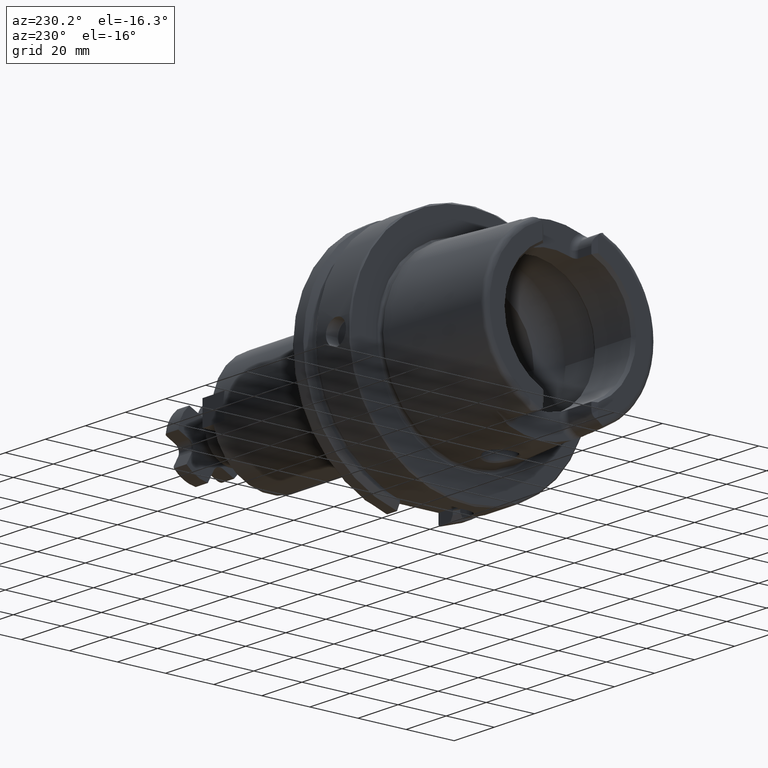
[diagram: clean part render]
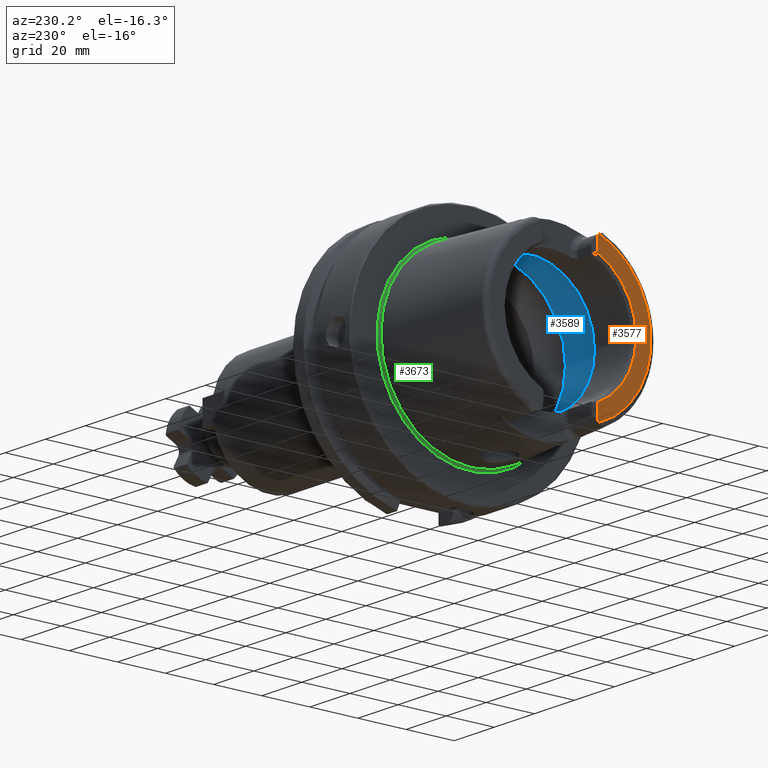
[diagram: same view with three faces highlighted in distinct colors, each labeled with its STEP entity id]
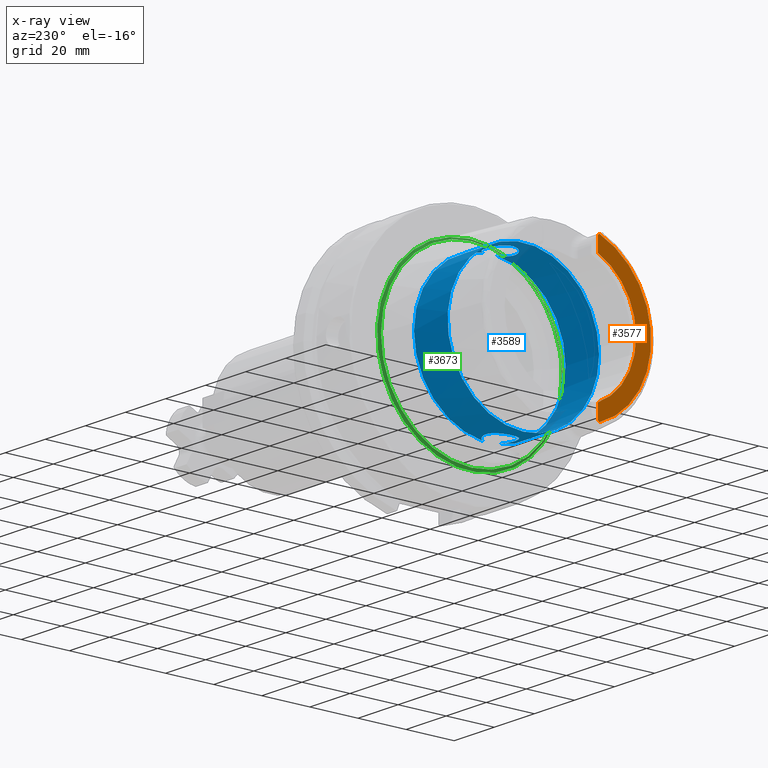
[diagram: x-ray of the same camera — body ghosted, the three highlighted faces saturated]
A machine part, auxiliary view with three faces highlighted in distinct colors.
The next image is the same camera in x-ray (body ghosted, the three faces saturated) — at least one of them is partly hidden behind the body in this view.
Their STEP definitions:

[orange] entity #3577 — the highlighted planar face has unit normal (-1, 0, 0).
#710=PLANE('',#4003);
#857=FACE_OUTER_BOUND('',#1048,.T.);
#1048=EDGE_LOOP('',(#2748,#2749,#2750,#2751,#2752,#2753));
#1254=LINE('',#5724,#1444);
#1256=LINE('',#5743,#1446);
#1444=VECTOR('',#4582,10.);
#1446=VECTOR('',#4604,10.);
#1625=CIRCLE('',#3999,27.3660254037844);
#1628=CIRCLE('',#4004,4.88);
#1629=CIRCLE('',#4005,33.6001839277785);
#1630=CIRCLE('',#4006,4.88);
#1878=VERTEX_POINT('',#5721);
#1879=VERTEX_POINT('',#5723);
#1881=VERTEX_POINT('',#5729);
#1884=VERTEX_POINT('',#5737);
#1885=VERTEX_POINT('',#5739);
#1886=VERTEX_POINT('',#5741);
#2208=EDGE_CURVE('',#1878,#1879,#1254,.T.);
#2211=EDGE_CURVE('',#1879,#1881,#1625,.T.);
#2215=EDGE_CURVE('',#1878,#1884,#1628,.T.);
#2216=EDGE_CURVE('',#1885,#1884,#1629,.T.);
#2217=EDGE_CURVE('',#1885,#1886,#1630,.T.);
#2218=EDGE_CURVE('',#1881,#1886,#1256,.T.);
#2748=ORIENTED_EDGE('',*,*,#2208,.F.);
#2749=ORIENTED_EDGE('',*,*,#2215,.T.);
#2750=ORIENTED_EDGE('',*,*,#2216,.F.);
#2751=ORIENTED_EDGE('',*,*,#2217,.T.);
#2752=ORIENTED_EDGE('',*,*,#2218,.F.);
#2753=ORIENTED_EDGE('',*,*,#2211,.F.);
#3577=ADVANCED_FACE('',(#857),#710,.T.);
#3999=AXIS2_PLACEMENT_3D('',#5730,#4588,#4589);
#4003=AXIS2_PLACEMENT_3D('',#5736,#4596,#4597);
#4004=AXIS2_PLACEMENT_3D('',#5738,#4598,#4599);
#4005=AXIS2_PLACEMENT_3D('',#5740,#4600,#4601);
#4006=AXIS2_PLACEMENT_3D('',#5742,#4602,#4603);
#4582=DIRECTION('',(0.,0.,1.));
#4588=DIRECTION('center_axis',(-1.,0.,0.));
#4589=DIRECTION('ref_axis',(0.,-1.,0.));
#4596=DIRECTION('center_axis',(-1.,0.,0.));
#4597=DIRECTION('ref_axis',(0.,0.,1.));
#4598=DIRECTION('center_axis',(-1.,0.,0.));
#4599=DIRECTION('ref_axis',(0.,-1.,0.));
#4600=DIRECTION('center_axis',(1.,0.,0.));
#4601=DIRECTION('ref_axis',(0.,0.,-1.));
#4602=DIRECTION('center_axis',(-1.,0.,0.));
#4603=DIRECTION('ref_axis',(0.,0.477884921181369,-0.878422450821629));
#4604=DIRECTION('',(0.,0.,1.));
#5721=CARTESIAN_POINT('',(-50.,-11.51,-30.8899431813596));
#5723=CARTESIAN_POINT('',(-50.,-11.51,-24.8277918148307));
#5724=CARTESIAN_POINT('',(-50.,-11.51,-13.685));
#5729=CARTESIAN_POINT('',(-50.,-11.51,24.8277918148307));
#5730=CARTESIAN_POINT('Origin',(-50.,0.,0.));
#5736=CARTESIAN_POINT('Origin',(-50.,33.6001839277785,0.));
#5737=CARTESIAN_POINT('',(-50.,-12.0743049948301,-31.355757348091));
#5738=CARTESIAN_POINT('Origin',(-50.,-14.89,-27.37));
#5739=CARTESIAN_POINT('',(-50.,-12.0743049948301,31.355757348091));
#5740=CARTESIAN_POINT('Origin',(-50.,0.,0.));
#5741=CARTESIAN_POINT('',(-50.,-11.51,30.8899431813596));
#5742=CARTESIAN_POINT('Origin',(-50.,-14.89,27.37));
#5743=CARTESIAN_POINT('',(-50.,-11.51,9.));

[blue] entity #3589 — the highlighted cylindrical surface (bore or boss wall) has radius 31.5 mm, axis along (-1, 0, 0).
#591=B_SPLINE_CURVE_WITH_KNOTS('',3,(#6147,#6148,#6149,#6150,#6151,#6152,
#6153,#6154,#6155,#6156,#6157,#6158,#6159,#6160,#6161,#6162,#6163,#6164,
#6165,#6166,#6167,#6168,#6169,#6170,#6171,#6172,#6173,#6174,#6175,#6176,
#6177),.UNSPECIFIED.,.F.,.F.,(4,2,2,2,2,2,2,2,2,2,2,3,2,2,4),(-2.42966289251045,
-2.26609494287567,-2.03948128472637,-1.81286762657707,-1.58625396842777,
-1.35964031027847,-1.1330370617835,-0.906433813288535,-0.679830564793567,
-0.453227316298599,-0.226613658149299,0.,0.2266136581493,0.453227316298599,
0.616795265988555),.UNSPECIFIED.);
#596=B_SPLINE_CURVE_WITH_KNOTS('',3,(#6339,#6340,#6341,#6342,#6343,#6344,
#6345,#6346,#6347,#6348,#6349,#6350,#6351,#6352,#6353,#6354,#6355,#6356,
#6357,#6358,#6359,#6360,#6361,#6362,#6363,#6364,#6365,#6366,#6367,#6368,
#6369),.UNSPECIFIED.,.F.,.F.,(4,2,2,3,2,2,2,2,2,2,2,2,2,2,4),(-0.616795265933374,
-0.453227316298598,-0.226613658149299,0.,0.2266136581493,0.453227316298599,
0.679830564793567,0.906433813288535,1.1330370617835,1.35964031027847,1.58625396842777,
1.81286762657707,2.03948128472637,2.26609494287567,2.42966289256562),
 .UNSPECIFIED.);
#784=CYLINDRICAL_SURFACE('',#4028,31.5);
#869=FACE_OUTER_BOUND('',#1062,.T.);
#1062=EDGE_LOOP('',(#2828,#2829,#2830,#2831,#2832,#2833,#2834,#2835,#2836));
#1271=LINE('',#6385,#1461);
#1461=VECTOR('',#4665,31.5);
#1640=CIRCLE('',#4029,31.5);
#1641=CIRCLE('',#4030,31.5);
#1642=CIRCLE('',#4031,31.5);
#1643=CIRCLE('',#4032,31.5);
#1644=CIRCLE('',#4033,31.5);
#1918=VERTEX_POINT('',#6135);
#1919=VERTEX_POINT('',#6146);
#1922=VERTEX_POINT('',#6326);
#1924=VERTEX_POINT('',#6338);
#1925=VERTEX_POINT('',#6382);
#1926=VERTEX_POINT('',#6384);
#1927=VERTEX_POINT('',#6386);
#2261=EDGE_CURVE('',#1919,#1918,#591,.T.);
#2267=EDGE_CURVE('',#1924,#1922,#596,.T.);
#2270=EDGE_CURVE('',#1925,#1922,#1640,.T.);
#2271=EDGE_CURVE('',#1925,#1926,#1271,.T.);
#2272=EDGE_CURVE('',#1926,#1927,#1641,.T.);
#2273=EDGE_CURVE('',#1927,#1926,#1642,.T.);
#2274=EDGE_CURVE('',#1919,#1925,#1643,.T.);
#2275=EDGE_CURVE('',#1924,#1918,#1644,.T.);
#2828=ORIENTED_EDGE('',*,*,#2267,.T.);
#2829=ORIENTED_EDGE('',*,*,#2270,.F.);
#2830=ORIENTED_EDGE('',*,*,#2271,.T.);
#2831=ORIENTED_EDGE('',*,*,#2272,.T.);
#2832=ORIENTED_EDGE('',*,*,#2273,.T.);
#2833=ORIENTED_EDGE('',*,*,#2271,.F.);
#2834=ORIENTED_EDGE('',*,*,#2274,.F.);
#2835=ORIENTED_EDGE('',*,*,#2261,.T.);
#2836=ORIENTED_EDGE('',*,*,#2275,.F.);
#3589=ADVANCED_FACE('',(#869),#784,.F.);
#4028=AXIS2_PLACEMENT_3D('',#6381,#4661,#4662);
#4029=AXIS2_PLACEMENT_3D('',#6383,#4663,#4664);
#4030=AXIS2_PLACEMENT_3D('',#6387,#4666,#4667);
#4031=AXIS2_PLACEMENT_3D('',#6388,#4668,#4669);
#4032=AXIS2_PLACEMENT_3D('',#6389,#4670,#4671);
#4033=AXIS2_PLACEMENT_3D('',#6390,#4672,#4673);
#4661=DIRECTION('center_axis',(-1.,0.,0.));
#4662=DIRECTION('ref_axis',(0.,1.,0.));
#4663=DIRECTION('center_axis',(-1.,0.,0.));
#4664=DIRECTION('ref_axis',(0.,0.,1.));
#4665=DIRECTION('',(-1.,0.,0.));
#4666=DIRECTION('center_axis',(-1.,0.,0.));
#4667=DIRECTION('ref_axis',(0.,0.,1.));
#4668=DIRECTION('center_axis',(-1.,0.,0.));
#4669=DIRECTION('ref_axis',(0.,0.,1.));
#4670=DIRECTION('center_axis',(-1.,0.,0.));
#4671=DIRECTION('ref_axis',(0.,0.,1.));
#4672=DIRECTION('center_axis',(-1.,0.,0.));
#4673=DIRECTION('ref_axis',(0.,0.,1.));
#6135=CARTESIAN_POINT('',(-9.74679434480896,2.89893607109041,-31.3663222207471));
#6146=CARTESIAN_POINT('',(-9.74679434480896,-2.89893607109041,-31.3663222207471));
#6147=CARTESIAN_POINT('Ctrl Pts',(-9.74679434480898,-2.8989360710904,-31.3663222207471));
#6148=CARTESIAN_POINT('Ctrl Pts',(-10.0245557799842,-3.40227174537722,-31.3198029657389));
#6149=CARTESIAN_POINT('Ctrl Pts',(-10.3735944692601,-3.85887584349869,-31.2651415110221));
#6150=CARTESIAN_POINT('Ctrl Pts',(-11.289042660848,-4.77432403508655,-31.140708727458));
#6151=CARTESIAN_POINT('Ctrl Pts',(-11.9624834305428,-5.23577180141274,-31.0633803744766));
#6152=CARTESIAN_POINT('Ctrl Pts',(-13.4401908644727,-5.84865855662958,-30.9538382316308));
#6153=CARTESIAN_POINT('Ctrl Pts',(-14.2446211395023,-6.00000000000001,-30.9232921921325));
#6154=CARTESIAN_POINT('Ctrl Pts',(-15.7553788604977,-6.00000000000001,-30.9232921921325));
#6155=CARTESIAN_POINT('Ctrl Pts',(-16.5598091355273,-5.84865855662958,-30.9538382316308));
#6156=CARTESIAN_POINT('Ctrl Pts',(-18.0375165694572,-5.23577180141275,-31.0633803744766));
#6157=CARTESIAN_POINT('Ctrl Pts',(-18.710957339152,-4.77432403508655,-31.140708727458));
#6158=CARTESIAN_POINT('Ctrl Pts',(-19.7742996118461,-3.71098176239249,-31.2852440928545));
#6159=CARTESIAN_POINT('Ctrl Pts',(-20.2357665181958,-3.03753058698362,-31.3619556484746));
#6160=CARTESIAN_POINT('Ctrl Pts',(-20.8486671603361,-1.55978711209124,-31.4700797313679));
#6161=CARTESIAN_POINT('Ctrl Pts',(-21.,-0.755344161649895,-31.5));
#6162=CARTESIAN_POINT('Ctrl Pts',(-21.,0.755344161649892,-31.5));
#6163=CARTESIAN_POINT('Ctrl Pts',(-20.8486671603361,1.55978711209124,-31.4700797313679));
#6164=CARTESIAN_POINT('Ctrl Pts',(-20.2357665181958,3.03753058698362,-31.3619556484746));
#6165=CARTESIAN_POINT('Ctrl Pts',(-19.7742996118461,3.71098176239249,-31.2852440928545));
#6166=CARTESIAN_POINT('Ctrl Pts',(-18.710957339152,4.77432403508655,-31.140708727458));
#6167=CARTESIAN_POINT('Ctrl Pts',(-18.0375165694572,5.23577180141274,-31.0633803744766));
#6168=CARTESIAN_POINT('Ctrl Pts',(-16.5598091355273,5.84865855662958,-30.9538382316308));
#6169=CARTESIAN_POINT('Ctrl Pts',(-15.7553788604977,6.00000000000001,-30.9232921921325));
#6170=CARTESIAN_POINT('Ctrl Pts',(-15.,6.00000000000001,-30.9232921921325));
#6171=CARTESIAN_POINT('Ctrl Pts',(-14.2446211395023,6.00000000000001,-30.9232921921325));
#6172=CARTESIAN_POINT('Ctrl Pts',(-13.4401908644727,5.84865855662958,-30.9538382316308));
#6173=CARTESIAN_POINT('Ctrl Pts',(-11.9624834305428,5.23577180141274,-31.0633803744766));
#6174=CARTESIAN_POINT('Ctrl Pts',(-11.289042660848,4.77432403508655,-31.140708727458));
#6175=CARTESIAN_POINT('Ctrl Pts',(-10.3735944691306,3.85887584336922,-31.2651415110397));
#6176=CARTESIAN_POINT('Ctrl Pts',(-10.0245557801354,3.40227174565105,-31.3198029657135));
#6177=CARTESIAN_POINT('Ctrl Pts',(-9.74679434480898,2.8989360710904,-31.3663222207471));
#6326=CARTESIAN_POINT('',(-9.74679434480896,-2.89893607109042,31.3663222207471));
#6338=CARTESIAN_POINT('',(-9.74679434480896,2.89893607109042,31.3663222207471));
#6339=CARTESIAN_POINT('Ctrl Pts',(-9.74679434480897,2.89893607109041,31.3663222207471));
#6340=CARTESIAN_POINT('Ctrl Pts',(-10.0245557799842,3.40227174537723,31.3198029657389));
#6341=CARTESIAN_POINT('Ctrl Pts',(-10.3735944692601,3.85887584349869,31.2651415110221));
#6342=CARTESIAN_POINT('Ctrl Pts',(-11.289042660848,4.77432403508655,31.140708727458));
#6343=CARTESIAN_POINT('Ctrl Pts',(-11.9624834305428,5.23577180141274,31.0633803744766));
#6344=CARTESIAN_POINT('Ctrl Pts',(-13.4401908644727,5.84865855662958,30.9538382316308));
#6345=CARTESIAN_POINT('Ctrl Pts',(-14.2446211395023,6.00000000000001,30.9232921921325));
#6346=CARTESIAN_POINT('Ctrl Pts',(-15.,6.00000000000001,30.9232921921325));
#6347=CARTESIAN_POINT('Ctrl Pts',(-15.7553788604977,6.00000000000001,30.9232921921325));
#6348=CARTESIAN_POINT('Ctrl Pts',(-16.5598091355273,5.84865855662958,30.9538382316308));
#6349=CARTESIAN_POINT('Ctrl Pts',(-18.0375165694572,5.23577180141274,31.0633803744766));
#6350=CARTESIAN_POINT('Ctrl Pts',(-18.710957339152,4.77432403508655,31.140708727458));
#6351=CARTESIAN_POINT('Ctrl Pts',(-19.7742996118461,3.71098176239249,31.2852440928545));
#6352=CARTESIAN_POINT('Ctrl Pts',(-20.2357665181958,3.03753058698362,31.3619556484746));
#6353=CARTESIAN_POINT('Ctrl Pts',(-20.8486671603361,1.55978711209124,31.4700797313679));
#6354=CARTESIAN_POINT('Ctrl Pts',(-21.,0.755344161649892,31.5));
#6355=CARTESIAN_POINT('Ctrl Pts',(-21.,-0.755344161649894,31.5));
#6356=CARTESIAN_POINT('Ctrl Pts',(-20.8486671603361,-1.55978711209124,31.4700797313679));
#6357=CARTESIAN_POINT('Ctrl Pts',(-20.2357665181958,-3.03753058698362,31.3619556484746));
#6358=CARTESIAN_POINT('Ctrl Pts',(-19.7742996118461,-3.71098176239249,31.2852440928545));
#6359=CARTESIAN_POINT('Ctrl Pts',(-18.710957339152,-4.77432403508655,31.140708727458));
#6360=CARTESIAN_POINT('Ctrl Pts',(-18.0375165694572,-5.23577180141274,31.0633803744766));
#6361=CARTESIAN_POINT('Ctrl Pts',(-16.5598091355273,-5.84865855662958,30.9538382316308));
#6362=CARTESIAN_POINT('Ctrl Pts',(-15.7553788604977,-6.00000000000001,30.9232921921325));
#6363=CARTESIAN_POINT('Ctrl Pts',(-14.2446211395023,-6.00000000000001,30.9232921921325));
#6364=CARTESIAN_POINT('Ctrl Pts',(-13.4401908644727,-5.84865855662958,30.9538382316308));
#6365=CARTESIAN_POINT('Ctrl Pts',(-11.9624834305428,-5.23577180141274,31.0633803744766));
#6366=CARTESIAN_POINT('Ctrl Pts',(-11.289042660848,-4.77432403508655,31.140708727458));
#6367=CARTESIAN_POINT('Ctrl Pts',(-10.3735944691306,-3.85887584336922,31.2651415110397));
#6368=CARTESIAN_POINT('Ctrl Pts',(-10.0245557801353,-3.40227174565106,31.3198029657135));
#6369=CARTESIAN_POINT('Ctrl Pts',(-9.74679434480897,-2.89893607109041,31.3663222207471));
#6381=CARTESIAN_POINT('Origin',(-18.1430342013226,0.,0.));
#6382=CARTESIAN_POINT('',(-9.74679434480896,-31.5,3.85763741731416E-15));
#6383=CARTESIAN_POINT('Origin',(-9.74679434480896,0.,0.));
#6384=CARTESIAN_POINT('',(-26.5392740578363,-31.5,3.85763741731416E-15));
#6385=CARTESIAN_POINT('',(-18.1430342013226,-31.5,3.85763741731416E-15));
#6386=CARTESIAN_POINT('',(-26.5392740578363,-3.85763741731416E-15,-31.5));
#6387=CARTESIAN_POINT('Origin',(-26.5392740578363,0.,0.));
#6388=CARTESIAN_POINT('Origin',(-26.5392740578363,0.,0.));
#6389=CARTESIAN_POINT('Origin',(-9.74679434480896,0.,0.));
#6390=CARTESIAN_POINT('Origin',(-9.74679434480896,0.,0.));

[green] entity #3673 — the highlighted toroidal blend (fillet) surface has major radius 38.5073 mm and minor (blend) radius 0.8 mm.
#666=TOROIDAL_SURFACE('',#4200,38.5073016032064,0.8);
#953=FACE_OUTER_BOUND('',#1151,.T.);
#1151=EDGE_LOOP('',(#3271,#3272,#3273,#3274,#3275,#3276));
#1715=CIRCLE('',#4176,38.6186400839745);
#1716=CIRCLE('',#4177,38.6186400839745);
#1726=CIRCLE('',#4198,37.7073016032064);
#1727=CIRCLE('',#4199,37.7073016032064);
#1728=CIRCLE('',#4201,0.8);
#2031=VERTEX_POINT('',#7050);
#2032=VERTEX_POINT('',#7051);
#2036=VERTEX_POINT('',#7080);
#2037=VERTEX_POINT('',#7081);
#2447=EDGE_CURVE('',#2031,#2032,#1715,.T.);
#2448=EDGE_CURVE('',#2032,#2031,#1716,.T.);
#2461=EDGE_CURVE('',#2036,#2037,#1726,.T.);
#2463=EDGE_CURVE('',#2037,#2036,#1727,.T.);
#2464=EDGE_CURVE('',#2037,#2032,#1728,.T.);
#3271=ORIENTED_EDGE('',*,*,#2461,.T.);
#3272=ORIENTED_EDGE('',*,*,#2464,.T.);
#3273=ORIENTED_EDGE('',*,*,#2447,.F.);
#3274=ORIENTED_EDGE('',*,*,#2448,.F.);
#3275=ORIENTED_EDGE('',*,*,#2464,.F.);
#3276=ORIENTED_EDGE('',*,*,#2463,.T.);
#3673=ADVANCED_FACE('',(#953),#666,.F.);
#4176=AXIS2_PLACEMENT_3D('',#7052,#5018,#5019);
#4177=AXIS2_PLACEMENT_3D('',#7053,#5020,#5021);
#4198=AXIS2_PLACEMENT_3D('',#7082,#5065,#5066);
#4199=AXIS2_PLACEMENT_3D('',#7084,#5068,#5069);
#4200=AXIS2_PLACEMENT_3D('',#7085,#5070,#5071);
#4201=AXIS2_PLACEMENT_3D('',#7086,#5072,#5073);
#5018=DIRECTION('center_axis',(1.,0.,0.));
#5019=DIRECTION('ref_axis',(0.,0.,-1.));
#5020=DIRECTION('center_axis',(1.,0.,0.));
#5021=DIRECTION('ref_axis',(0.,0.,-1.));
#5065=DIRECTION('center_axis',(1.,0.,0.));
#5066=DIRECTION('ref_axis',(0.,0.,-1.));
#5068=DIRECTION('center_axis',(1.,0.,0.));
#5069=DIRECTION('ref_axis',(0.,0.,-1.));
#5070=DIRECTION('center_axis',(1.,0.,0.));
#5071=DIRECTION('ref_axis',(0.,0.,-1.));
#5072=DIRECTION('center_axis',(0.,-1.,-1.22464679914735E-16));
#5073=DIRECTION('ref_axis',(0.,-1.22464679914735E-16,1.));
#7050=CARTESIAN_POINT('',(0.0922144549932558,-38.6186400839745,-4.7294193966263E-15));
#7051=CARTESIAN_POINT('',(0.0922144549932559,-4.7294193966263E-15,38.6186400839745));
#7052=CARTESIAN_POINT('Origin',(0.0922144549932559,0.,0.));
#7053=CARTESIAN_POINT('Origin',(0.0922144549932559,0.,0.));
#7080=CARTESIAN_POINT('',(-0.7,-37.7073016032064,-4.61781262128506E-15));
#7081=CARTESIAN_POINT('',(-0.7,-4.61781262128506E-15,37.7073016032064));
#7082=CARTESIAN_POINT('Origin',(-0.7,0.,0.));
#7084=CARTESIAN_POINT('Origin',(-0.7,0.,0.));
#7085=CARTESIAN_POINT('Origin',(-0.7,0.,0.));
#7086=CARTESIAN_POINT('Origin',(-0.7,-4.71578436521685E-15,38.5073016032064));